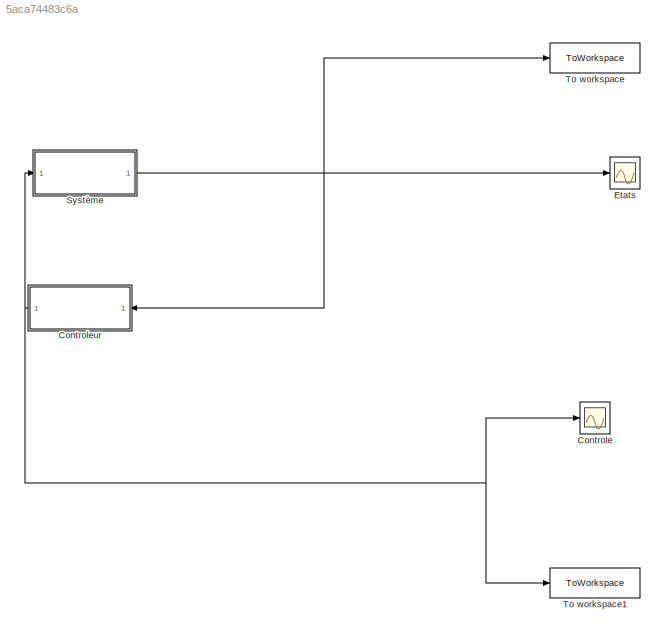
MODEL slx_5aca74483c6a
KIND model
CONFIG AbsTol = auto
CONFIG EnableMultiTasking = off
CONFIG FixedStep = auto
CONFIG MaxStep = auto
CONFIG MinStep = auto
CONFIG RelTol = 1e-3
CONFIG SampleTimeConstraint = Unconstrained
CONFIG SolverName = VariableStepAuto
CONFIG StartTime = 0.0
CONFIG StopTime = 10.0
BLOCK [Scope] Controle
  Floating = off
  NumInputPorts = 1
  Ports = [1]
  ScopeSpecificationString = Simulink.scopes.TimeScopeBlockCfg('CurrentConfiguration', extmgr.ConfigurationSet(extmgr.Configuration('Core','General UI',true),extmgr.Configuration('Core','Source UI',true),extmgr.Configuration('Sources','WiredSimulink',true,'DataLoggingVariableName','ScopeData1'),extmgr.Configuration('Visuals','Time Domain',true),extmgr.Configuration('Tools','Plot Navigation',true),extmgr.Configuration('Tools',...<+65ch>
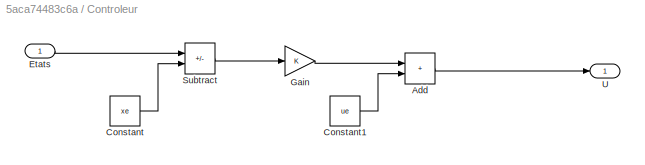
BLOCK [SubSystem] Controleur
  NameLocation = top
  Ports = [1, 1]
  RequestExecContextInheritance = off
BLOCK [Sum] Controleur/Add
  IconShape = rectangular
  Ports = [2, 1]
BLOCK [Constant] Controleur/Constant
  OutDataTypeStr = double
  Value = xe
BLOCK [Constant] Controleur/Constant1
  Value = ue
BLOCK [Inport] Controleur/Etats
BLOCK [Gain] Controleur/Gain
  Gain = K
  Multiplication = Matrix(K*u)
BLOCK [Sum] Controleur/Subtract
  IconShape = rectangular
  Inputs = +-
  Ports = [2, 1]
BLOCK [Outport] Controleur/U
BLOCK [Scope] Etats
  Floating = off
  NumInputPorts = 1
  Ports = [1]
  ScopeSpecificationString = Simulink.scopes.TimeScopeBlockCfg('CurrentConfiguration', extmgr.ConfigurationSet(extmgr.Configuration('Core','General UI',true),extmgr.Configuration('Core','Source UI',true),extmgr.Configuration('Sources','WiredSimulink',true),extmgr.Configuration('Visuals','Time Domain',true),extmgr.Configuration('Tools','Plot Navigation',true),extmgr.Configuration('Tools','Measurements',true)),'Version','2021a'...<+26ch>
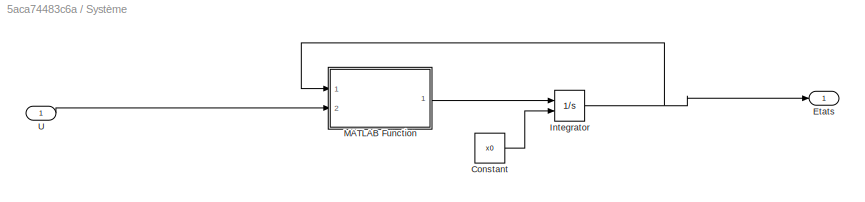
BLOCK [SubSystem] Système
  Ports = [1, 1]
  RequestExecContextInheritance = off
BLOCK [Constant] Système/Constant
  Value = x0
BLOCK [Outport] Système/Etats
BLOCK [Integrator] Système/Integrator
  InitialConditionSource = external
  Ports = [2, 1]
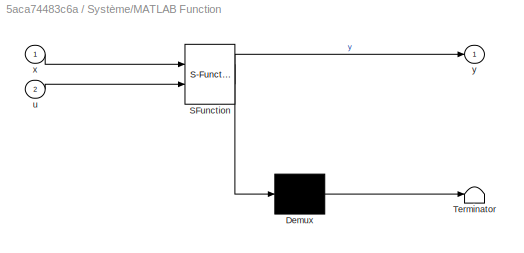
BLOCK [SubSystem] Système/MATLAB Function
  ErrorFcn = Stateflow.Translate.translate
  PermitHierarchicalResolution = ExplicitOnly
  Ports = [2, 1]
  RequestExecContextInheritance = off
  SFBlockType = MATLAB Function
  TreatAsAtomicUnit = on
BLOCK [Demux] Système/MATLAB Function/ Demux 
  Outputs = 1
  Ports = [1, 1]
BLOCK [S-Function] Système/MATLAB Function/ SFunction 
  EnableBusSupport = on
  FunctionName = sf_sfun
  PortCounts = [2 2]
  Ports = [2, 2]
  SFcnIsStateOwnerBlock = off
  SFunctionDeploymentMode = off
  Tag = Stateflow S-Function 2
BLOCK [Terminator] Système/MATLAB Function/ Terminator 
BLOCK [Inport] Système/MATLAB Function/u
  Port = 2
BLOCK [Inport] Système/MATLAB Function/x
BLOCK [Outport] Système/MATLAB Function/y
BLOCK [Inport] Système/U
BLOCK [ToWorkspace] To workspace
  FixptAsFi = on
  MaxDataPoints = inf
  Ports = [1]
  SampleTime = -1
  SaveFormat = Timeseries
  VariableName = X
BLOCK [ToWorkspace] To workspace1
  FixptAsFi = on
  MaxDataPoints = inf
  Ports = [1]
  SampleTime = -1
  SaveFormat = Timeseries
  VariableName = U
LINE Controleur/Add:1 -> Controleur/U:1
LINE Controleur/Constant1:1 -> Controleur/Add:2
LINE Controleur/Constant:1 -> Controleur/Subtract:2
LINE Controleur/Etats:1 -> Controleur/Subtract:1
LINE Controleur/Gain:1 -> Controleur/Add:1
LINE Controleur/Subtract:1 -> Controleur/Gain:1
NET Controleur:1 -> Controle:1, Système:1, To workspace1:1
LINE Système/Constant:1 -> Système/Integrator:2
NET Système/Integrator:1 -> Système/Etats:1, Système/MATLAB Function:1
LINE Système/MATLAB Function:1 -> Système/Integrator:1
LINE Système/U:1 -> Système/MATLAB Function:2
NET Système:1 -> Controleur:1, Etats:1, To workspace:1
note: NET lines group one-source signal fan-out (src -> all destinations, sorted); 1:1 wires keep LINE
CHART Système/MATLAB Function states=1 transitions=1
  STATE_LABEL 'eML_blk_kernel()'
  STATE_LABEL 'SCRIPT:\nfunction y = fcn(x,u)\ng = 9.81; l = 10;   % constantes\ny = [x(2); (g/l)*sin(x(1))-(cos(x(1))*u)/l];\n'
CHART  states=0 transitions=0
